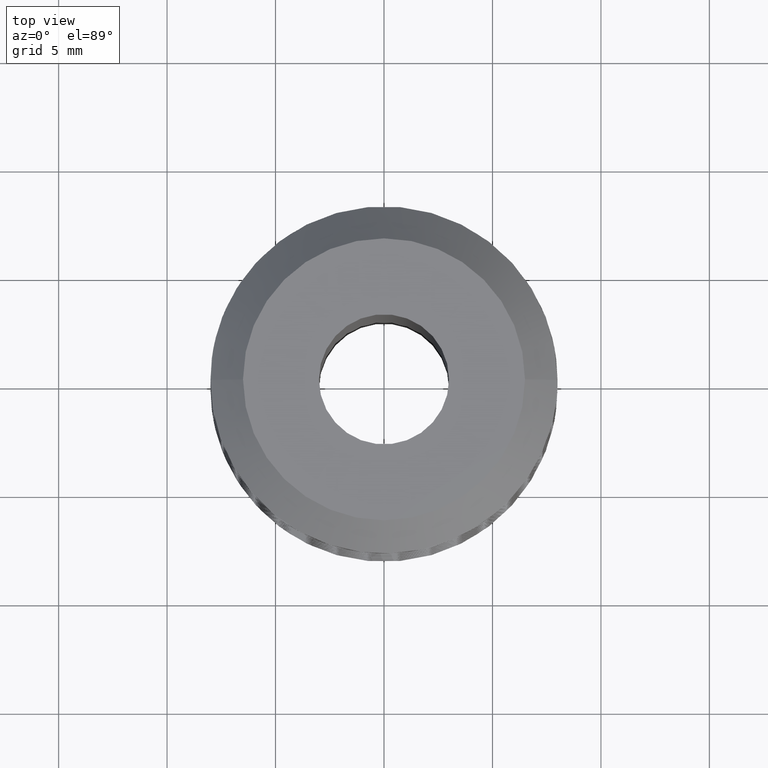
[diagram: clean part render]
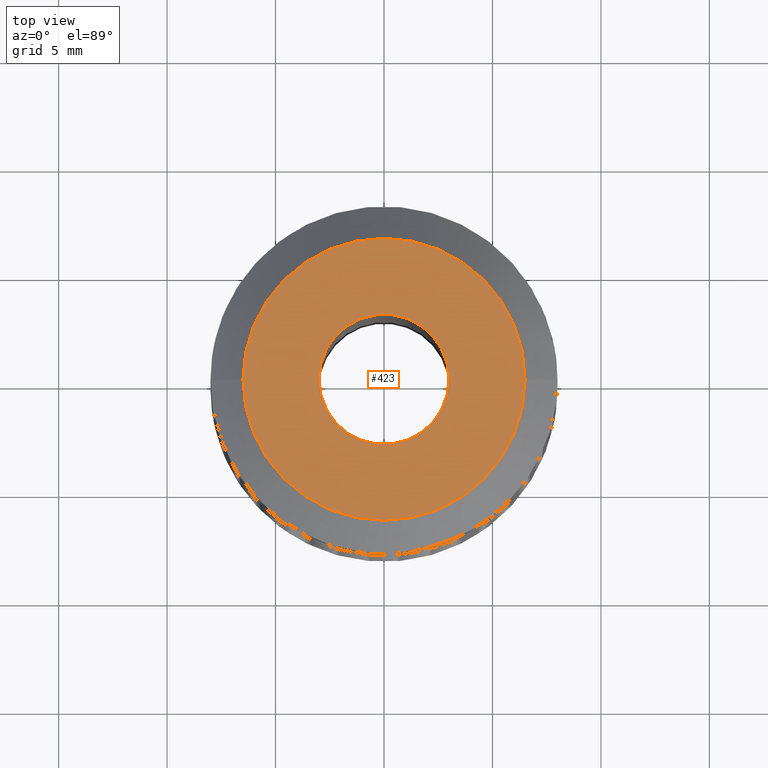
[diagram: same view with one face highlighted and labeled with its STEP entity id]
A machine part, top view. The second image highlights one B-rep face of the part: STEP entity #423.
In plain terms, the highlighted planar face has unit normal (0, 0, 1).
Its self-contained STEP definition (entity closure, byte-faithful):
#115 = AXIS2_PLACEMENT_3D ( 'NONE', #151, #150, #149 ) ;
#127 = AXIS2_PLACEMENT_3D ( 'NONE', #395, #396, #397 ) ;
#129 = AXIS2_PLACEMENT_3D ( 'NONE', #405, #406, #407 ) ;
#131 = AXIS2_PLACEMENT_3D ( 'NONE', #2151, #2152, #2153 ) ;
#135 = AXIS2_PLACEMENT_3D ( 'NONE', #2242, #2243, #2244 ) ;
#149 = DIRECTION ( 'NONE',  ( 1.000000000000000000, 0.0000000000000000000, 0.0000000000000000000 ) ) ;
#150 = DIRECTION ( 'NONE',  ( 0.0000000000000000000, 0.0000000000000000000, 1.000000000000000000 ) ) ;
#151 = CARTESIAN_POINT ( 'NONE',  ( -6.578000000000000300, -6.578000000000000300, 0.0000000000000000000 ) ) ;
#152 = PLANE ( 'NONE',  #115 ) ;
#395 = CARTESIAN_POINT ( 'NONE',  ( 0.0000000000000000000, 0.0000000000000000000, 0.0000000000000000000 ) ) ;
#396 = DIRECTION ( 'NONE',  ( -0.0000000000000000000, -0.0000000000000000000, 1.000000000000000000 ) ) ;
#397 = DIRECTION ( 'NONE',  ( -1.000000000000000000, 0.0000000000000000000, 0.0000000000000000000 ) ) ;
#405 = CARTESIAN_POINT ( 'NONE',  ( 0.0000000000000000000, 0.0000000000000000000, 0.0000000000000000000 ) ) ;
#406 = DIRECTION ( 'NONE',  ( -0.0000000000000000000, -0.0000000000000000000, 1.000000000000000000 ) ) ;
#407 = DIRECTION ( 'NONE',  ( -1.000000000000000000, 0.0000000000000000000, 0.0000000000000000000 ) ) ;
#423 = ADVANCED_FACE ( 'NONE', ( #1314, #1315 ), #152, .T. ) ;
#443 = EDGE_CURVE ( 'NONE', #3413, #3406, #1220, .T. ) ;
#447 = EDGE_CURVE ( 'NONE', #3405, #3409, #1225, .T. ) ;
#451 = EDGE_CURVE ( 'NONE', #3409, #3405, #1228, .T. ) ;
#457 = EDGE_CURVE ( 'NONE', #3406, #3413, #1231, .T. ) ;
#1220 = CIRCLE ( 'NONE', #127, 3.000000000000000000 ) ;
#1225 = CIRCLE ( 'NONE', #129, 6.500000000000000900 ) ;
#1228 = CIRCLE ( 'NONE', #131, 6.500000000000000900 ) ;
#1231 = CIRCLE ( 'NONE', #135, 3.000000000000000000 ) ;
#1314 = FACE_BOUND ( 'NONE', #1411, .T. ) ;
#1315 = FACE_OUTER_BOUND ( 'NONE', #1412, .T. ) ;
#1411 = EDGE_LOOP ( 'NONE', ( #1516, #1515 ) ) ;
#1412 = EDGE_LOOP ( 'NONE', ( #1514, #1513 ) ) ;
#1513 = ORIENTED_EDGE ( 'NONE', *, *, #447, .T. ) ;
#1514 = ORIENTED_EDGE ( 'NONE', *, *, #451, .T. ) ;
#1515 = ORIENTED_EDGE ( 'NONE', *, *, #457, .F. ) ;
#1516 = ORIENTED_EDGE ( 'NONE', *, *, #443, .F. ) ;
#2069 = CARTESIAN_POINT ( 'NONE',  ( 6.500000000000000900, 8.878689293818310100E-016, 0.0000000000000000000 ) ) ;
#2070 = CARTESIAN_POINT ( 'NONE',  ( 3.000000000000000000, 3.673940397442059900E-016, 0.0000000000000000000 ) ) ;
#2073 = CARTESIAN_POINT ( 'NONE',  ( -6.500000000000000900, 0.0000000000000000000, 0.0000000000000000000 ) ) ;
#2077 = CARTESIAN_POINT ( 'NONE',  ( -3.000000000000000000, 0.0000000000000000000, 0.0000000000000000000 ) ) ;
#2151 = CARTESIAN_POINT ( 'NONE',  ( 0.0000000000000000000, 0.0000000000000000000, 0.0000000000000000000 ) ) ;
#2152 = DIRECTION ( 'NONE',  ( -0.0000000000000000000, -0.0000000000000000000, 1.000000000000000000 ) ) ;
#2153 = DIRECTION ( 'NONE',  ( -1.000000000000000000, 0.0000000000000000000, 0.0000000000000000000 ) ) ;
#2242 = CARTESIAN_POINT ( 'NONE',  ( 0.0000000000000000000, 0.0000000000000000000, 0.0000000000000000000 ) ) ;
#2243 = DIRECTION ( 'NONE',  ( -0.0000000000000000000, -0.0000000000000000000, 1.000000000000000000 ) ) ;
#2244 = DIRECTION ( 'NONE',  ( -1.000000000000000000, 0.0000000000000000000, 0.0000000000000000000 ) ) ;
#3405 = VERTEX_POINT ( 'NONE', #2069 ) ;
#3406 = VERTEX_POINT ( 'NONE', #2070 ) ;
#3409 = VERTEX_POINT ( 'NONE', #2073 ) ;
#3413 = VERTEX_POINT ( 'NONE', #2077 ) ;